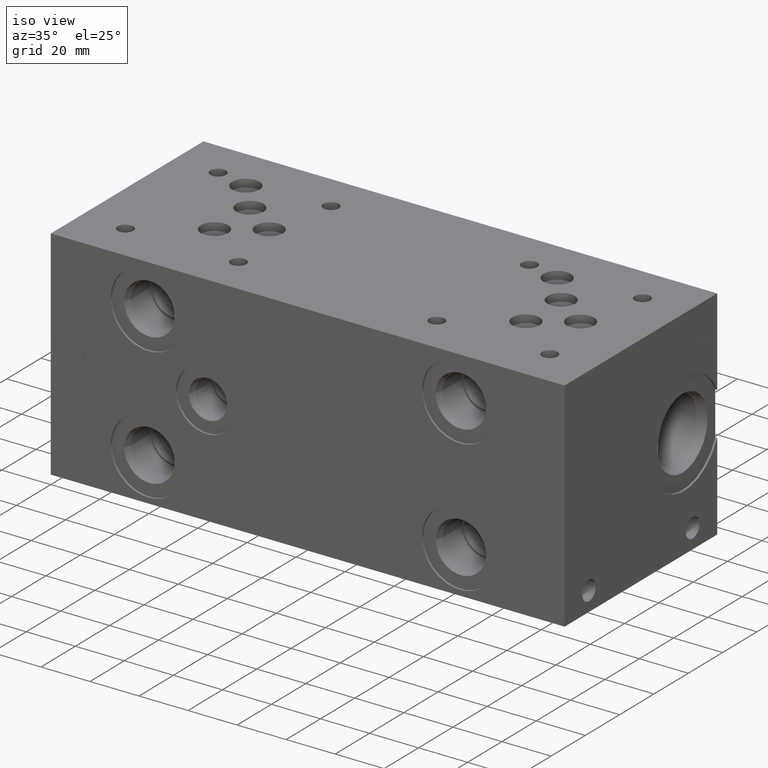
[diagram: clean part render]
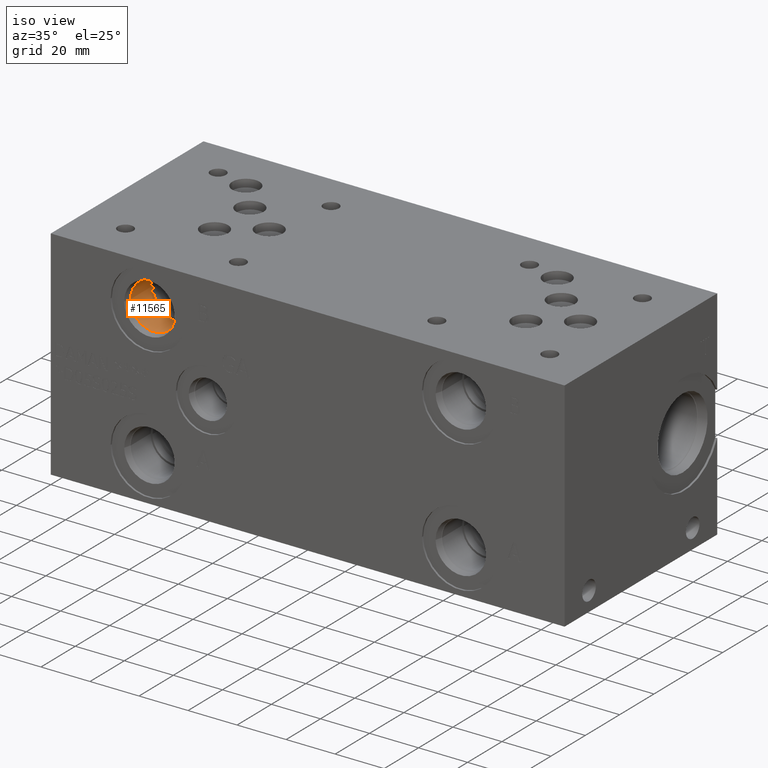
[diagram: same view with one face highlighted and labeled with its STEP entity id]
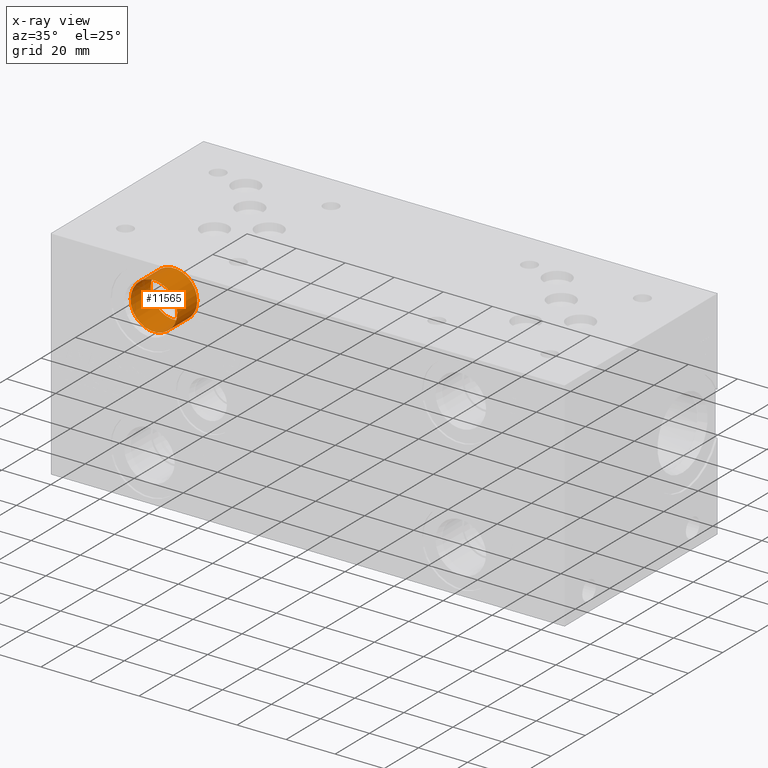
[diagram: x-ray of the same camera — body ghosted, the highlighted face saturated]
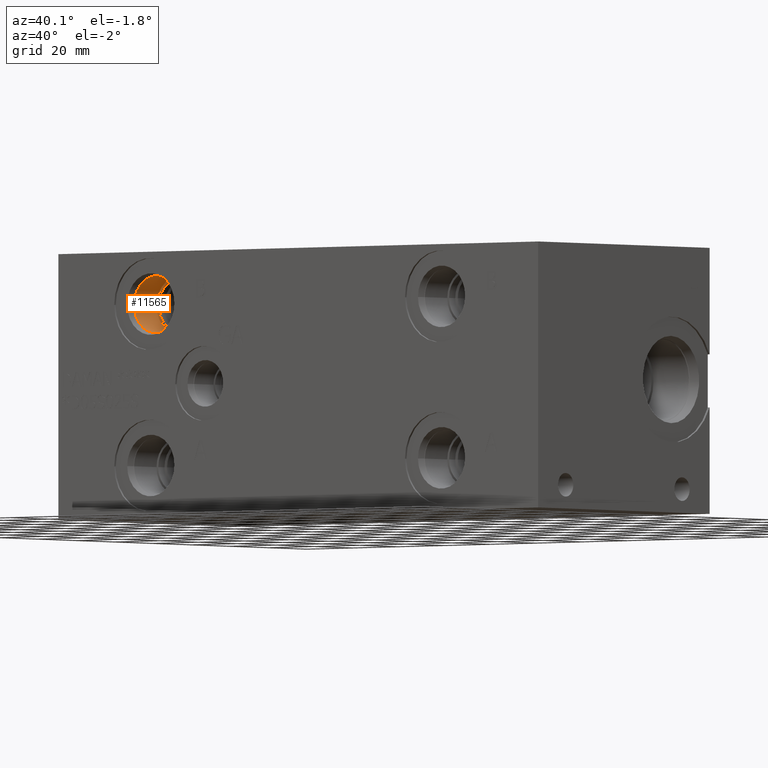
[diagram: same view with one face highlighted and labeled with its STEP entity id]
A machine part, iso view. The second image highlights one B-rep face of the part: STEP entity #11565.
The next image is the same camera in x-ray: the body ghosted, the highlighted face saturated — about 0% of this face is hidden behind the body in this view.
A second angle (auxiliary view) of the same face is appended — the face is thin or edge-on in the first view.
In plain terms, the highlighted cylindrical surface (bore or boss wall) has radius 9.525 mm, axis along (0, -1, 0).
Its self-contained STEP definition (entity closure, byte-faithful):
#47=CYLINDRICAL_SURFACE('',#12152,9.525);
#261=CIRCLE('',#12149,9.525);
#262=CIRCLE('',#12150,9.525);
#264=CIRCLE('',#12153,9.525);
#1476=FACE_OUTER_BOUND('',#2139,.T.);
#2139=EDGE_LOOP('',(#9890,#9891,#9892,#9893,#9894));
#3226=LINE('',#19779,#4270);
#4270=VECTOR('',#14332,9.525);
#5300=VERTEX_POINT('',#19770);
#5301=VERTEX_POINT('',#19771);
#5303=VERTEX_POINT('',#19777);
#6871=EDGE_CURVE('',#5300,#5301,#261,.T.);
#6872=EDGE_CURVE('',#5301,#5300,#262,.T.);
#6874=EDGE_CURVE('',#5303,#5303,#264,.T.);
#6875=EDGE_CURVE('',#5303,#5301,#3226,.T.);
#9890=ORIENTED_EDGE('',*,*,#6874,.F.);
#9891=ORIENTED_EDGE('',*,*,#6875,.T.);
#9892=ORIENTED_EDGE('',*,*,#6871,.F.);
#9893=ORIENTED_EDGE('',*,*,#6872,.F.);
#9894=ORIENTED_EDGE('',*,*,#6875,.F.);
#11565=ADVANCED_FACE('',(#1476),#47,.F.);
#12149=AXIS2_PLACEMENT_3D('',#19772,#14322,#14323);
#12150=AXIS2_PLACEMENT_3D('',#19773,#14324,#14325);
#12152=AXIS2_PLACEMENT_3D('',#19776,#14328,#14329);
#12153=AXIS2_PLACEMENT_3D('',#19778,#14330,#14331);
#14322=DIRECTION('center_axis',(0.,-1.,0.));
#14323=DIRECTION('ref_axis',(1.,0.,0.));
#14324=DIRECTION('center_axis',(0.,-1.,0.));
#14325=DIRECTION('ref_axis',(1.,0.,0.));
#14328=DIRECTION('center_axis',(0.,-1.,0.));
#14329=DIRECTION('ref_axis',(1.,0.,0.));
#14330=DIRECTION('center_axis',(0.,1.,0.));
#14331=DIRECTION('ref_axis',(1.,0.,0.));
#14332=DIRECTION('',(0.,1.,0.));
#19770=CARTESIAN_POINT('',(49.1998,15.0622,71.4502));
#19771=CARTESIAN_POINT('',(30.1498,15.0622,71.4502));
#19772=CARTESIAN_POINT('Origin',(39.6748,15.0622,71.4502));
#19773=CARTESIAN_POINT('Origin',(39.6748,15.0622,71.4502));
#19776=CARTESIAN_POINT('Origin',(39.6748,7.5311,71.4502));
#19777=CARTESIAN_POINT('',(30.1498,3.4036,71.4502));
#19778=CARTESIAN_POINT('Origin',(39.6748,3.4036,71.4502));
#19779=CARTESIAN_POINT('',(30.1498,7.5311,71.4502));